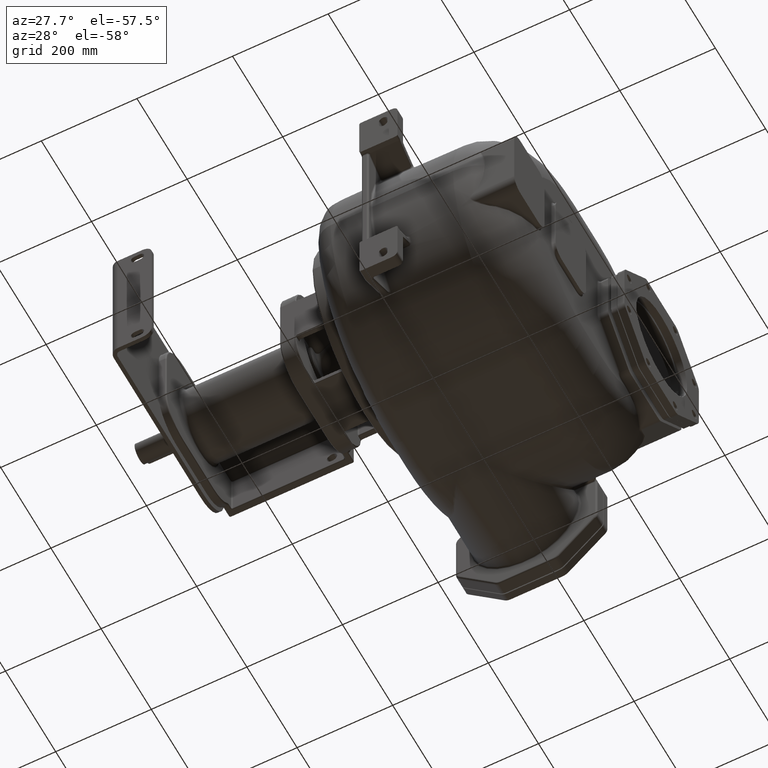
[diagram: clean part render]
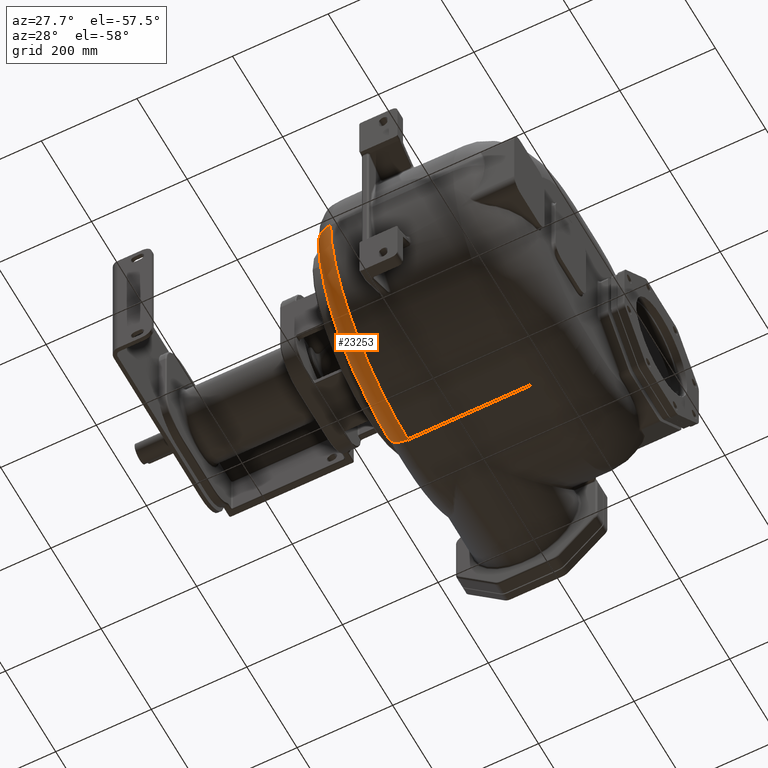
[diagram: same view with one face highlighted and labeled with its STEP entity id]
A machine part, auxiliary view. The second image highlights one B-rep face of the part: STEP entity #23253.
In plain terms, the highlighted toroidal blend (fillet) surface has major radius 267 mm and minor (blend) radius 42 mm.
Its self-contained STEP definition (entity closure, byte-faithful):
#1561=CARTESIAN_POINT('',(-1.62E2,3.28E2,-1.8E1));
#1562=DIRECTION('',(-1.E0,0.E0,0.E0));
#1563=DIRECTION('',(0.E0,0.E0,-1.E0));
#1564=AXIS2_PLACEMENT_3D('',#1561,#1562,#1563);
#2175=CARTESIAN_POINT('',(-1.2E2,3.28E2,-2.85E2));
#2176=DIRECTION('',(0.E0,-1.E0,0.E0));
#2177=DIRECTION('',(-1.E0,0.E0,0.E0));
#2178=AXIS2_PLACEMENT_3D('',#2175,#2176,#2177);
#2198=CARTESIAN_POINT('',(-1.2E2,6.1E1,-1.8E1));
#2199=DIRECTION('',(0.E0,0.E0,1.E0));
#2200=DIRECTION('',(-1.E0,0.E0,0.E0));
#2201=AXIS2_PLACEMENT_3D('',#2198,#2199,#2200);
#2706=CARTESIAN_POINT('',(-1.2E2,3.28E2,-1.8E1));
#2707=DIRECTION('',(-1.E0,0.E0,0.E0));
#2708=DIRECTION('',(0.E0,0.E0,-1.E0));
#2709=AXIS2_PLACEMENT_3D('',#2706,#2707,#2708);
#19954=CARTESIAN_POINT('',(-1.2E2,3.28E2,-3.27E2));
#19956=VERTEX_POINT('',#19954);
#20230=CARTESIAN_POINT('',(-1.62E2,3.28E2,-2.85E2));
#20232=VERTEX_POINT('',#20230);
#20235=CARTESIAN_POINT('',(-1.62E2,6.1E1,-1.8E1));
#20236=VERTEX_POINT('',#20235);
#20237=CARTESIAN_POINT('',(-1.2E2,1.9E1,-1.8E1));
#20238=VERTEX_POINT('',#20237);
#23240=CARTESIAN_POINT('',(-1.2E2,3.28E2,-1.8E1));
#23241=DIRECTION('',(-1.E0,0.E0,0.E0));
#23242=DIRECTION('',(0.E0,4.878572068263E-3,-9.999880996965E-1));
#23243=AXIS2_PLACEMENT_3D('',#23240,#23241,#23242);
#23244=TOROIDAL_SURFACE('',#23243,2.67E2,4.2E1);
#23245=ORIENTED_EDGE('',*,*,#22816,.T.);
#23247=ORIENTED_EDGE('',*,*,#23246,.T.);
#23249=ORIENTED_EDGE('',*,*,#23248,.F.);
#23250=ORIENTED_EDGE('',*,*,#23233,.F.);
#23251=EDGE_LOOP('',(#23245,#23247,#23249,#23250));
#23252=FACE_OUTER_BOUND('',#23251,.F.);
#23253=ADVANCED_FACE('',(#23252),#23244,.T.);
#1565=CIRCLE('',#1564,2.67E2);
#2179=CIRCLE('',#2178,4.2E1);
#2202=CIRCLE('',#2201,4.2E1);
#2710=CIRCLE('',#2709,3.09E2);
#22816=EDGE_CURVE('',#20232,#20236,#1565,.T.);
#23233=EDGE_CURVE('',#20232,#19956,#2179,.T.);
#23246=EDGE_CURVE('',#20236,#20238,#2202,.T.);
#23248=EDGE_CURVE('',#19956,#20238,#2710,.T.);